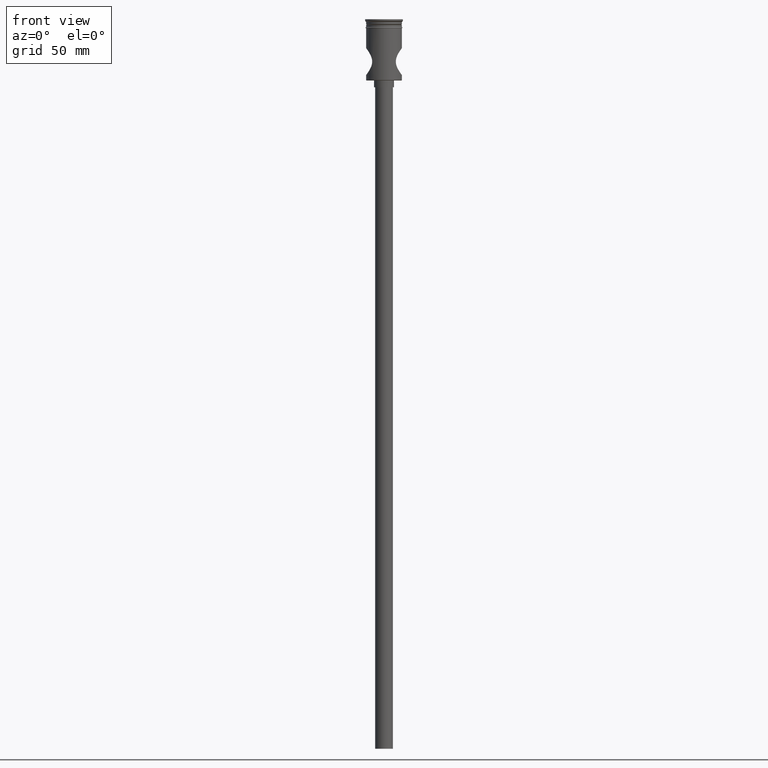
[diagram: clean part render]
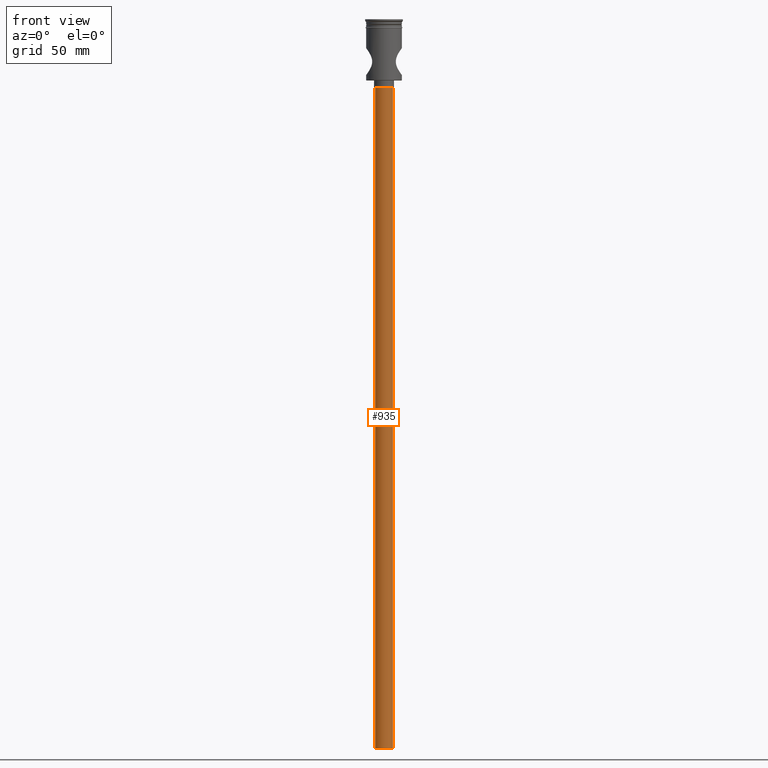
[diagram: same view with one face highlighted and labeled with its STEP entity id]
A machine part, front view. The second image highlights one B-rep face of the part: STEP entity #935.
In plain terms, the highlighted cylindrical surface (edge-blend (fillet) strip) has radius 4 mm, axis along (-0, -0, 1).
Its self-contained STEP definition (entity closure, byte-faithful):
#18 = AXIS2_PLACEMENT_3D ( 'NONE', #1379, #213, #458 ) ;
#61 = VERTEX_POINT ( 'NONE', #957 ) ;
#110 = EDGE_CURVE ( 'NONE', #721, #61, #1305, .T. ) ;
#139 = CARTESIAN_POINT ( 'NONE',  ( 0.000000000000000000, 0.000000000000000000, -327.5000000000000000 ) ) ;
#166 = LINE ( 'NONE', #741, #683 ) ;
#213 = DIRECTION ( 'NONE',  ( 0.000000000000000000, 0.000000000000000000, -1.000000000000000000 ) ) ;
#232 = CARTESIAN_POINT ( 'NONE',  ( 4.000000000000000000, 0.000000000000000000, -327.5000000000000000 ) ) ;
#298 = DIRECTION ( 'NONE',  ( 0.000000000000000000, 0.000000000000000000, -1.000000000000000000 ) ) ;
#372 = VERTEX_POINT ( 'NONE', #1215 ) ;
#381 = DIRECTION ( 'NONE',  ( -0.000000000000000000, -0.000000000000000000, 1.000000000000000000 ) ) ;
#383 = EDGE_LOOP ( 'NONE', ( #1505, #1126, #655, #528 ) ) ;
#430 = EDGE_CURVE ( 'NONE', #836, #372, #166, .T. ) ;
#450 = EDGE_CURVE ( 'NONE', #836, #721, #1019, .T. ) ;
#458 = DIRECTION ( 'NONE',  ( -1.000000000000000000, 0.000000000000000000, 0.000000000000000000 ) ) ;
#514 = DIRECTION ( 'NONE',  ( -0.000000000000000000, -0.000000000000000000, 1.000000000000000000 ) ) ;
#528 = ORIENTED_EDGE ( 'NONE', *, *, #697, .T. ) ;
#645 = CARTESIAN_POINT ( 'NONE',  ( -4.000000000000000000, 4.898587196589412829E-16, -327.5000000000000000 ) ) ;
#655 = ORIENTED_EDGE ( 'NONE', *, *, #430, .T. ) ;
#683 = VECTOR ( 'NONE', #514, 1000.000000000000000 ) ;
#697 = EDGE_CURVE ( 'NONE', #372, #61, #971, .T. ) ;
#721 = VERTEX_POINT ( 'NONE', #645 ) ;
#726 = CYLINDRICAL_SURFACE ( 'NONE', #1091, 4.000000000000000000 ) ;
#741 = CARTESIAN_POINT ( 'NONE',  ( 4.000000000000000000, 0.000000000000000000, -327.5000000000000000 ) ) ;
#836 = VERTEX_POINT ( 'NONE', #232 ) ;
#935 = ADVANCED_FACE ( 'NONE', ( #1194 ), #726, .T. ) ;
#938 = DIRECTION ( 'NONE',  ( -0.000000000000000000, -0.000000000000000000, 1.000000000000000000 ) ) ;
#957 = CARTESIAN_POINT ( 'NONE',  ( -4.000000000000000000, 4.898587196589412829E-16, -30.50000000000000000 ) ) ;
#971 = CIRCLE ( 'NONE', #1161, 4.000000000000000000 ) ;
#1019 = CIRCLE ( 'NONE', #18, 4.000000000000000000 ) ;
#1071 = DIRECTION ( 'NONE',  ( 1.000000000000000000, 0.000000000000000000, 0.000000000000000000 ) ) ;
#1091 = AXIS2_PLACEMENT_3D ( 'NONE', #139, #938, #1071 ) ;
#1106 = CARTESIAN_POINT ( 'NONE',  ( 0.000000000000000000, 0.000000000000000000, -30.50000000000000000 ) ) ;
#1126 = ORIENTED_EDGE ( 'NONE', *, *, #450, .F. ) ;
#1161 = AXIS2_PLACEMENT_3D ( 'NONE', #1106, #298, #1238 ) ;
#1169 = CARTESIAN_POINT ( 'NONE',  ( -4.000000000000000000, 4.898587196589412829E-16, -327.5000000000000000 ) ) ;
#1194 = FACE_OUTER_BOUND ( 'NONE', #383, .T. ) ;
#1215 = CARTESIAN_POINT ( 'NONE',  ( 4.000000000000000000, 0.000000000000000000, -30.50000000000000000 ) ) ;
#1238 = DIRECTION ( 'NONE',  ( -1.000000000000000000, 0.000000000000000000, 0.000000000000000000 ) ) ;
#1305 = LINE ( 'NONE', #1169, #1439 ) ;
#1379 = CARTESIAN_POINT ( 'NONE',  ( 0.000000000000000000, 0.000000000000000000, -327.5000000000000000 ) ) ;
#1439 = VECTOR ( 'NONE', #381, 1000.000000000000000 ) ;
#1505 = ORIENTED_EDGE ( 'NONE', *, *, #110, .F. ) ;